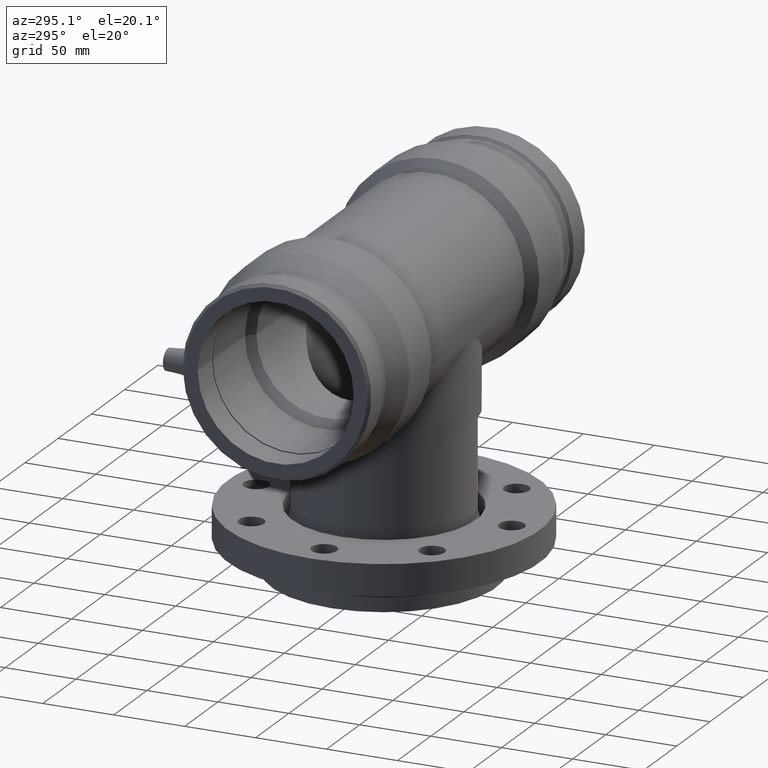
[diagram: clean part render]
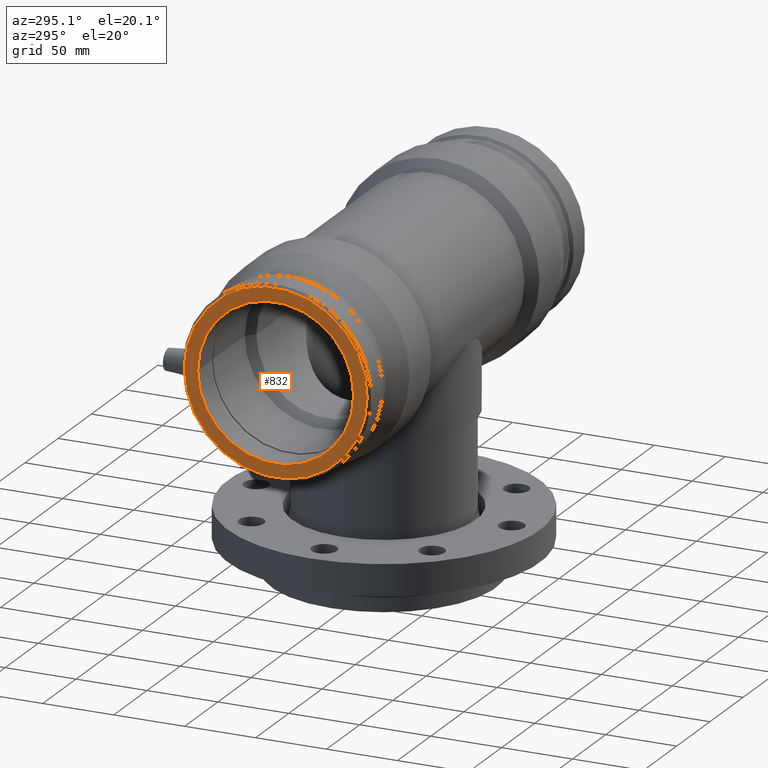
[diagram: same view with one face highlighted and labeled with its STEP entity id]
A machine part, auxiliary view. The second image highlights one B-rep face of the part: STEP entity #832.
In plain terms, the highlighted planar face has unit normal (-1, 0, 0).
Its self-contained STEP definition (entity closure, byte-faithful):
#77=FACE_BOUND('',#361,.T.);
#149=CIRCLE('',#946,64.50015);
#150=CIRCLE('',#947,55.);
#247=FACE_OUTER_BOUND('',#360,.T.);
#360=EDGE_LOOP('',(#717));
#361=EDGE_LOOP('',(#718));
#489=VERTEX_POINT('',#1928);
#490=VERTEX_POINT('',#1930);
#577=EDGE_CURVE('',#489,#489,#149,.T.);
#578=EDGE_CURVE('',#490,#490,#150,.T.);
#717=ORIENTED_EDGE('',*,*,#577,.F.);
#718=ORIENTED_EDGE('',*,*,#578,.T.);
#787=PLANE('',#945);
#832=ADVANCED_FACE('',(#247,#77),#787,.T.);
#945=AXIS2_PLACEMENT_3D('',#1927,#1169,#1170);
#946=AXIS2_PLACEMENT_3D('',#1929,#1171,#1172);
#947=AXIS2_PLACEMENT_3D('',#1931,#1173,#1174);
#1169=DIRECTION('center_axis',(-1.,0.,0.));
#1170=DIRECTION('ref_axis',(0.,0.,1.));
#1171=DIRECTION('center_axis',(1.,0.,0.));
#1172=DIRECTION('ref_axis',(0.,0.,-1.));
#1173=DIRECTION('center_axis',(1.,0.,0.));
#1174=DIRECTION('ref_axis',(0.,0.,-1.));
#1927=CARTESIAN_POINT('Origin',(-163.,64.50015,0.));
#1928=CARTESIAN_POINT('',(-163.,64.50015,0.));
#1929=CARTESIAN_POINT('Origin',(-163.,0.,0.));
#1930=CARTESIAN_POINT('',(-163.,55.,0.));
#1931=CARTESIAN_POINT('Origin',(-163.,0.,0.));